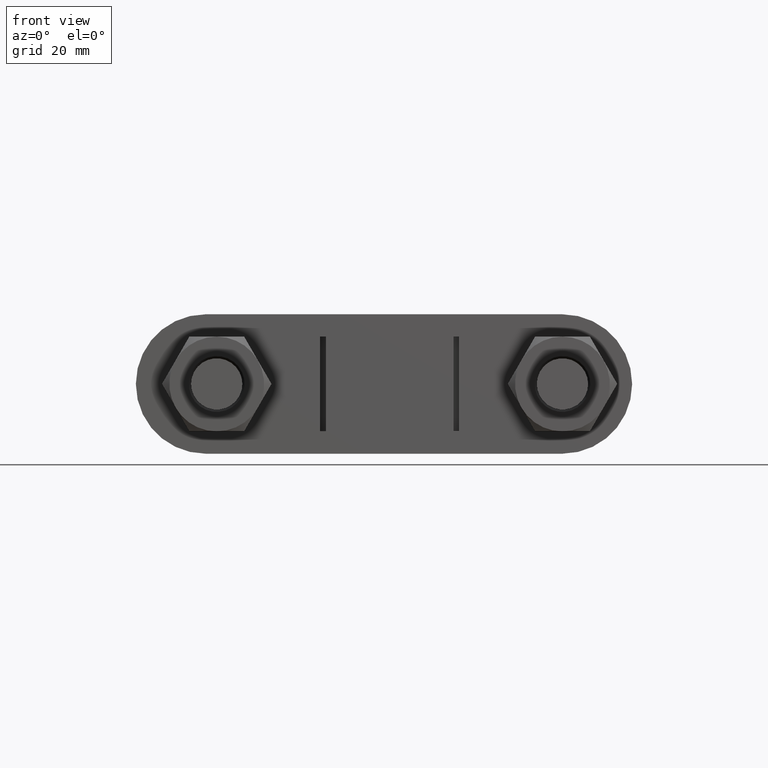
[diagram: clean part render]
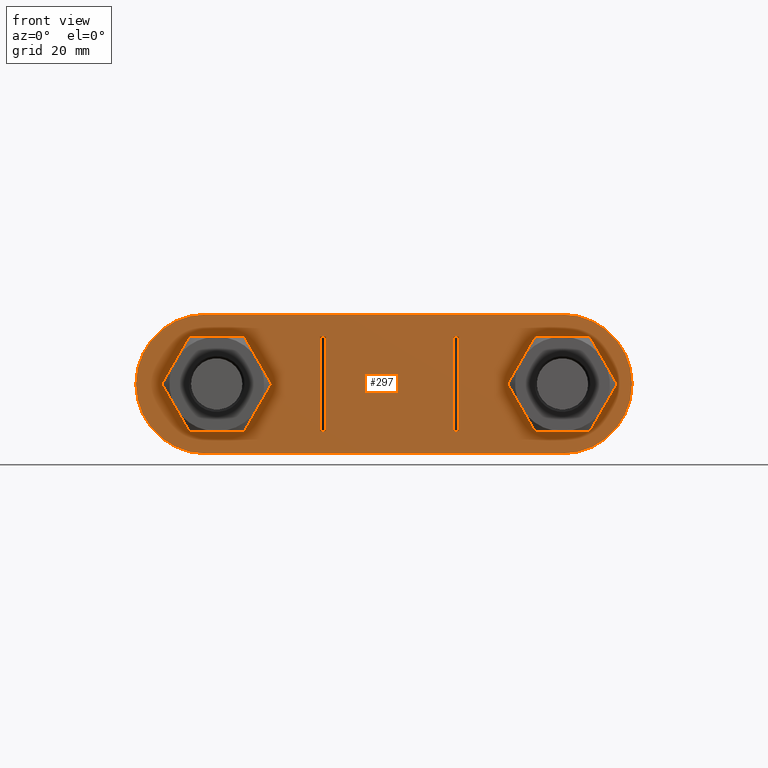
[diagram: same view with one face highlighted and labeled with its STEP entity id]
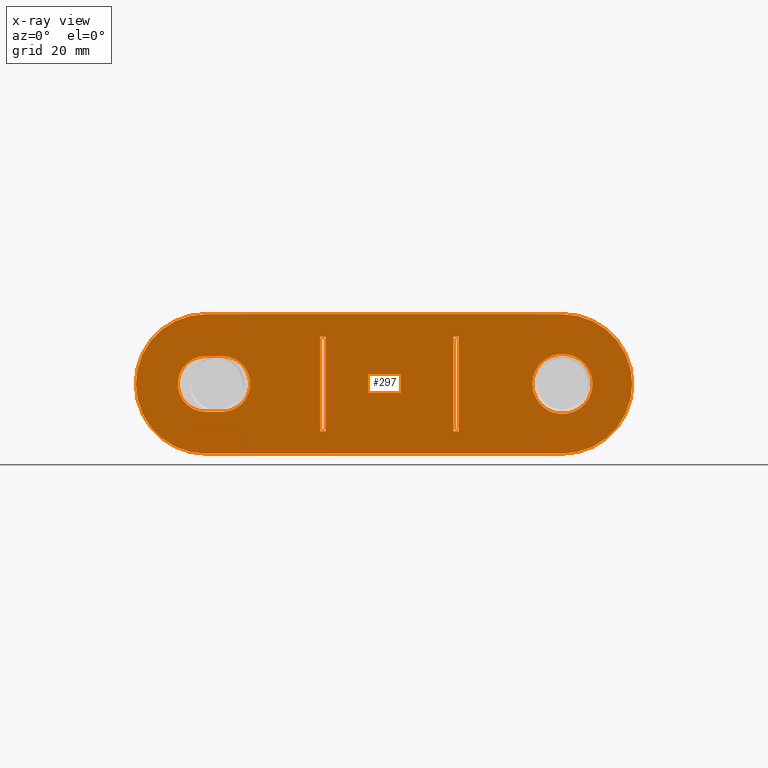
[diagram: x-ray of the same camera — body ghosted, the highlighted face saturated]
A machine part, front view. The second image highlights one B-rep face of the part: STEP entity #297.
The next image is the same camera in x-ray: the body ghosted, the highlighted face saturated — about 0% of this face is hidden behind the body in this view.
In plain terms, the highlighted planar face has unit normal (0, 1, 0).
Its self-contained STEP definition (entity closure, byte-faithful):
#297 = ADVANCED_FACE( '', ( #451, #452, #453, #454, #455 ), #456, .F. );
#451 = FACE_BOUND( '', #1533, .T. );
#452 = FACE_OUTER_BOUND( '', #1534, .T. );
#453 = FACE_BOUND( '', #1535, .T. );
#454 = FACE_BOUND( '', #1536, .T. );
#455 = FACE_BOUND( '', #1537, .T. );
#456 = PLANE( '', #1538 );
#1533 = EDGE_LOOP( '', ( #1912, #1913, #1914, #1915 ) );
#1534 = EDGE_LOOP( '', ( #1916, #1917, #1918, #1919, #1920, #1921 ) );
#1535 = EDGE_LOOP( '', ( #1922 ) );
#1536 = EDGE_LOOP( '', ( #1923, #1924, #1925, #1926 ) );
#1537 = EDGE_LOOP( '', ( #1927, #1928, #1929, #1930 ) );
#1538 = AXIS2_PLACEMENT_3D( '', #1931, #1932, #1933 );
#1912 = ORIENTED_EDGE( '', *, *, #2593, .F. );
#1913 = ORIENTED_EDGE( '', *, *, #2594, .T. );
#1914 = ORIENTED_EDGE( '', *, *, #2595, .T. );
#1915 = ORIENTED_EDGE( '', *, *, #2596, .F. );
#1916 = ORIENTED_EDGE( '', *, *, #2597, .F. );
#1917 = ORIENTED_EDGE( '', *, *, #2598, .F. );
#1918 = ORIENTED_EDGE( '', *, *, #2599, .F. );
#1919 = ORIENTED_EDGE( '', *, *, #2600, .F. );
#1920 = ORIENTED_EDGE( '', *, *, #2601, .F. );
#1921 = ORIENTED_EDGE( '', *, *, #2602, .F. );
#1922 = ORIENTED_EDGE( '', *, *, #2603, .T. );
#1923 = ORIENTED_EDGE( '', *, *, #2604, .F. );
#1924 = ORIENTED_EDGE( '', *, *, #2605, .F. );
#1925 = ORIENTED_EDGE( '', *, *, #2606, .F. );
#1926 = ORIENTED_EDGE( '', *, *, #2607, .F. );
#1927 = ORIENTED_EDGE( '', *, *, #2608, .T. );
#1928 = ORIENTED_EDGE( '', *, *, #2609, .T. );
#1929 = ORIENTED_EDGE( '', *, *, #2610, .F. );
#1930 = ORIENTED_EDGE( '', *, *, #2611, .F. );
#1931 = CARTESIAN_POINT( '', ( -33.0000000000000, 30.7000000000000, -2.74104993349355E-010 ) );
#1932 = DIRECTION( '', ( 2.69049844737294E-016, 1.00000000000000, 2.19103554241528E-016 ) );
#1933 = DIRECTION( '', ( -8.30656377015886E-012, -2.19103554239293E-016, 1.00000000000000 ) );
#2593 = EDGE_CURVE( '', #2863, #2864, #2865, .T. );
#2594 = EDGE_CURVE( '', #2863, #2866, #2867, .T. );
#2595 = EDGE_CURVE( '', #2866, #2868, #2869, .T. );
#2596 = EDGE_CURVE( '', #2864, #2868, #2870, .T. );
#2597 = EDGE_CURVE( '', #2871, #2872, #2873, .T. );
#2598 = EDGE_CURVE( '', #2874, #2871, #2875, .T. );
#2599 = EDGE_CURVE( '', #2876, #2874, #2877, .T. );
#2600 = EDGE_CURVE( '', #2878, #2876, #2879, .T. );
#2601 = EDGE_CURVE( '', #2880, #2878, #2881, .T. );
#2602 = EDGE_CURVE( '', #2872, #2880, #2882, .T. );
#2603 = EDGE_CURVE( '', #2883, #2883, #2884, .T. );
#2604 = EDGE_CURVE( '', #2885, #2886, #2887, .T. );
#2605 = EDGE_CURVE( '', #2888, #2885, #2889, .T. );
#2606 = EDGE_CURVE( '', #2890, #2888, #2891, .T. );
#2607 = EDGE_CURVE( '', #2886, #2890, #2892, .T. );
#2608 = EDGE_CURVE( '', #2893, #2894, #2895, .T. );
#2609 = EDGE_CURVE( '', #2894, #2896, #2897, .T. );
#2610 = EDGE_CURVE( '', #2898, #2896, #2899, .T. );
#2611 = EDGE_CURVE( '', #2893, #2898, #2900, .T. );
#2863 = VERTEX_POINT( '', #3501 );
#2864 = VERTEX_POINT( '', #3502 );
#2865 = LINE( '', #3503, #3504 );
#2866 = VERTEX_POINT( '', #3505 );
#2867 = LINE( '', #3506, #3507 );
#2868 = VERTEX_POINT( '', #3508 );
#2869 = LINE( '', #3509, #3510 );
#2870 = LINE( '', #3511, #3512 );
#2871 = VERTEX_POINT( '', #3513 );
#2872 = VERTEX_POINT( '', #3514 );
#2873 = CIRCLE( '', #3515, 12.5000000000000 );
#2874 = VERTEX_POINT( '', #3516 );
#2875 = CIRCLE( '', #3517, 12.5000000000000 );
#2876 = VERTEX_POINT( '', #3518 );
#2877 = LINE( '', #3519, #3520 );
#2878 = VERTEX_POINT( '', #3521 );
#2879 = CIRCLE( '', #3522, 12.5000000000000 );
#2880 = VERTEX_POINT( '', #3523 );
#2881 = CIRCLE( '', #3524, 12.5000000000000 );
#2882 = LINE( '', #3525, #3526 );
#2883 = VERTEX_POINT( '', #3527 );
#2884 = CIRCLE( '', #3528, 5.40000000000000 );
#2885 = VERTEX_POINT( '', #3529 );
#2886 = VERTEX_POINT( '', #3530 );
#2887 = CIRCLE( '', #3531, 5.00000000000000 );
#2888 = VERTEX_POINT( '', #3532 );
#2889 = LINE( '', #3533, #3534 );
#2890 = VERTEX_POINT( '', #3535 );
#2891 = CIRCLE( '', #3536, 5.00000000000000 );
#2892 = LINE( '', #3537, #3538 );
#2893 = VERTEX_POINT( '', #3539 );
#2894 = VERTEX_POINT( '', #3540 );
#2895 = LINE( '', #3541, #3542 );
#2896 = VERTEX_POINT( '', #3543 );
#2897 = LINE( '', #3544, #3545 );
#2898 = VERTEX_POINT( '', #3546 );
#2899 = LINE( '', #3547, #3548 );
#2900 = LINE( '', #3549, #3550 );
#3501 = CARTESIAN_POINT( '', ( -12.4499999999294, 30.7000000000000, -8.50000000010341 ) );
#3502 = CARTESIAN_POINT( '', ( -11.4499999999294, 30.7000000000000, -8.50000000009510 ) );
#3503 = CARTESIAN_POINT( '', ( -12.4499999999294, 30.7000000000000, -8.50000000010341 ) );
#3504 = VECTOR( '', #4131, 1000.00000000000 );
#3505 = CARTESIAN_POINT( '', ( -12.4500000000706, 30.7000000000000, 8.49999999989659 ) );
#3506 = CARTESIAN_POINT( '', ( -12.4499999999294, 30.7000000000000, -8.50000000010341 ) );
#3507 = VECTOR( '', #4132, 1000.00000000000 );
#3508 = CARTESIAN_POINT( '', ( -11.4500000000706, 30.7000000000000, 8.49999999990490 ) );
#3509 = CARTESIAN_POINT( '', ( -12.4500000000706, 30.7000000000000, 8.49999999989659 ) );
#3510 = VECTOR( '', #4133, 1000.00000000000 );
#3511 = CARTESIAN_POINT( '', ( -11.4499999999294, 30.7000000000000, -8.50000000009510 ) );
#3512 = VECTOR( '', #4134, 1000.00000000000 );
#3513 = CARTESIAN_POINT( '', ( -45.5000000000000, 30.7000000000000, -3.77940509923292E-010 ) );
#3514 = CARTESIAN_POINT( '', ( -33.0000000001038, 30.7000000000000, 12.4999999997259 ) );
#3515 = AXIS2_PLACEMENT_3D( '', #4135, #4136, #4137 );
#3516 = CARTESIAN_POINT( '', ( -32.9999999998962, 30.7000000000000, -12.5000000002741 ) );
#3517 = AXIS2_PLACEMENT_3D( '', #4138, #4139, #4140 );
#3518 = CARTESIAN_POINT( '', ( 31.0000000001038, 30.7000000000000, -12.4999999997425 ) );
#3519 = CARTESIAN_POINT( '', ( 31.0000000001039, 30.7000000000000, -12.4999999997425 ) );
#3520 = VECTOR( '', #4141, 1000.00000000000 );
#3521 = CARTESIAN_POINT( '', ( 43.5000000000000, 30.7000000000000, 3.61347135067799E-010 ) );
#3522 = AXIS2_PLACEMENT_3D( '', #4142, #4143, #4144 );
#3523 = CARTESIAN_POINT( '', ( 30.9999999998962, 30.7000000000000, 12.5000000002575 ) );
#3524 = AXIS2_PLACEMENT_3D( '', #4145, #4146, #4147 );
#3525 = CARTESIAN_POINT( '', ( -33.0000000001038, 30.7000000000000, 12.4999999997259 ) );
#3526 = VECTOR( '', #4148, 1000.00000000000 );
#3527 = CARTESIAN_POINT( '', ( 36.4000000000000, 30.7000000000000, 3.02372267023147E-010 ) );
#3528 = AXIS2_PLACEMENT_3D( '', #4149, #4150, #4151 );
#3529 = CARTESIAN_POINT( '', ( -33.0000000000415, 30.6999984999318, 4.99999999972590 ) );
#3530 = CARTESIAN_POINT( '', ( -32.9999999999585, 30.6999984999318, -5.00000000027410 ) );
#3531 = AXIS2_PLACEMENT_3D( '', #4152, #4153, #4154 );
#3532 = CARTESIAN_POINT( '', ( -30.0000000000415, 30.6999984999318, 4.99999999975082 ) );
#3533 = CARTESIAN_POINT( '', ( -30.0000000000415, 30.6999984999318, 4.99999999975082 ) );
#3534 = VECTOR( '', #4155, 1000.00000000000 );
#3535 = CARTESIAN_POINT( '', ( -29.9999999999585, 30.6999984999318, -5.00000000024918 ) );
#3536 = AXIS2_PLACEMENT_3D( '', #4156, #4157, #4158 );
#3537 = CARTESIAN_POINT( '', ( -32.9999999999585, 30.6999984999318, -5.00000000027410 ) );
#3538 = VECTOR( '', #4159, 1000.00000000000 );
#3539 = CARTESIAN_POINT( '', ( 12.4500000000706, 30.7000000000000, -8.49999999989657 ) );
#3540 = CARTESIAN_POINT( '', ( 11.4500000000706, 30.7000000000000, -8.49999999990488 ) );
#3541 = CARTESIAN_POINT( '', ( 12.4500000000706, 30.7000000000000, -8.49999999989657 ) );
#3542 = VECTOR( '', #4160, 1000.00000000000 );
#3543 = CARTESIAN_POINT( '', ( 11.4499999999294, 30.7000000000000, 8.50000000009512 ) );
#3544 = CARTESIAN_POINT( '', ( 11.4500000000706, 30.7000000000000, -8.49999999990488 ) );
#3545 = VECTOR( '', #4161, 1000.00000000000 );
#3546 = CARTESIAN_POINT( '', ( 12.4499999999294, 30.7000000000000, 8.50000000010343 ) );
#3547 = CARTESIAN_POINT( '', ( 12.4499999999294, 30.7000000000000, 8.50000000010343 ) );
#3548 = VECTOR( '', #4162, 1000.00000000000 );
#3549 = CARTESIAN_POINT( '', ( 12.4500000000706, 30.7000000000000, -8.49999999989657 ) );
#3550 = VECTOR( '', #4163, 1000.00000000000 );
#4131 = DIRECTION( '', ( 1.00000000000000, -2.69049844739114E-016, 8.30656377015886E-012 ) );
#4132 = DIRECTION( '', ( -8.30640340265816E-012, 5.86611048674801E-017, 1.00000000000000 ) );
#4133 = DIRECTION( '', ( 1.00000000000000, -2.69049844739114E-016, 8.30656377015886E-012 ) );
#4134 = DIRECTION( '', ( -8.30640340265816E-012, 5.86611048674801E-017, 1.00000000000000 ) );
#4135 = CARTESIAN_POINT( '', ( -33.0000000000000, 30.7000000000000, -2.74104993349355E-010 ) );
#4136 = DIRECTION( '', ( 2.69049844737294E-016, 1.00000000000000, 2.19103554241528E-016 ) );
#4137 = DIRECTION( '', ( -1.00000000000000, 2.69049844739114E-016, -8.30670254803694E-012 ) );
#4138 = CARTESIAN_POINT( '', ( -33.0000000000000, 30.7000000000000, -2.74101523902403E-010 ) );
#4139 = DIRECTION( '', ( 2.69049844737294E-016, 1.00000000000000, 2.19103554241528E-016 ) );
#4140 = DIRECTION( '', ( 8.30711888167118E-012, 2.19103554239293E-016, -1.00000000000000 ) );
#4141 = DIRECTION( '', ( -1.00000000000000, 2.69049844739114E-016, -8.30656377015886E-012 ) );
#4142 = CARTESIAN_POINT( '', ( 31.0000000000000, 30.7000000000000, 2.57518557387765E-010 ) );
#4143 = DIRECTION( '', ( 2.69049844737294E-016, 1.00000000000000, 2.19103554241528E-016 ) );
#4144 = DIRECTION( '', ( 1.00000000000000, -2.69049844739114E-016, 8.30670254803694E-012 ) );
#4145 = CARTESIAN_POINT( '', ( 31.0000000000000, 30.7000000000000, 2.57515087940813E-010 ) );
#4146 = DIRECTION( '', ( 2.69049844737294E-016, 1.00000000000000, 2.19103554241528E-016 ) );
#4147 = DIRECTION( '', ( -8.30656377015886E-012, -2.19103554239293E-016, 1.00000000000000 ) );
#4148 = DIRECTION( '', ( 1.00000000000000, -2.69049844739114E-016, 8.30656377015886E-012 ) );
#4149 = CARTESIAN_POINT( '', ( 31.0000000000000, 30.7000000000000, 2.57516822664289E-010 ) );
#4150 = DIRECTION( '', ( 2.69049844737294E-016, 1.00000000000000, 2.19103554241528E-016 ) );
#4151 = DIRECTION( '', ( 1.00000000000000, -2.69049844739114E-016, 8.30656377015886E-012 ) );
#4152 = CARTESIAN_POINT( '', ( -33.0000000000000, 30.6999984999318, -2.74103258626207E-010 ) );
#4153 = DIRECTION( '', ( -2.69049844737294E-016, -1.00000000000000, -2.19103554241528E-016 ) );
#4154 = DIRECTION( '', ( -8.30656377015886E-012, -2.19103554239293E-016, 1.00000000000000 ) );
#4155 = DIRECTION( '', ( -1.00000000000000, 2.69049844739114E-016, -8.30656377015886E-012 ) );
#4156 = CARTESIAN_POINT( '', ( -30.0000000000000, 30.6999984999318, -2.49183567315731E-010 ) );
#4157 = DIRECTION( '', ( -2.69049844737294E-016, -1.00000000000000, -2.19103554241528E-016 ) );
#4158 = DIRECTION( '', ( 8.30656377015886E-012, 2.19103554239293E-016, -1.00000000000000 ) );
#4159 = DIRECTION( '', ( 1.00000000000000, -2.69049844739114E-016, 8.30656377015886E-012 ) );
#4160 = DIRECTION( '', ( -1.00000000000000, 3.91510480121351E-016, -8.30656377015886E-012 ) );
#4161 = DIRECTION( '', ( -8.30672413765957E-012, 5.86611048674802E-017, 1.00000000000000 ) );
#4162 = DIRECTION( '', ( -1.00000000000000, 3.91510480121351E-016, -8.30656377015886E-012 ) );
#4163 = DIRECTION( '', ( -8.30672413765957E-012, 5.86611048674802E-017, 1.00000000000000 ) );